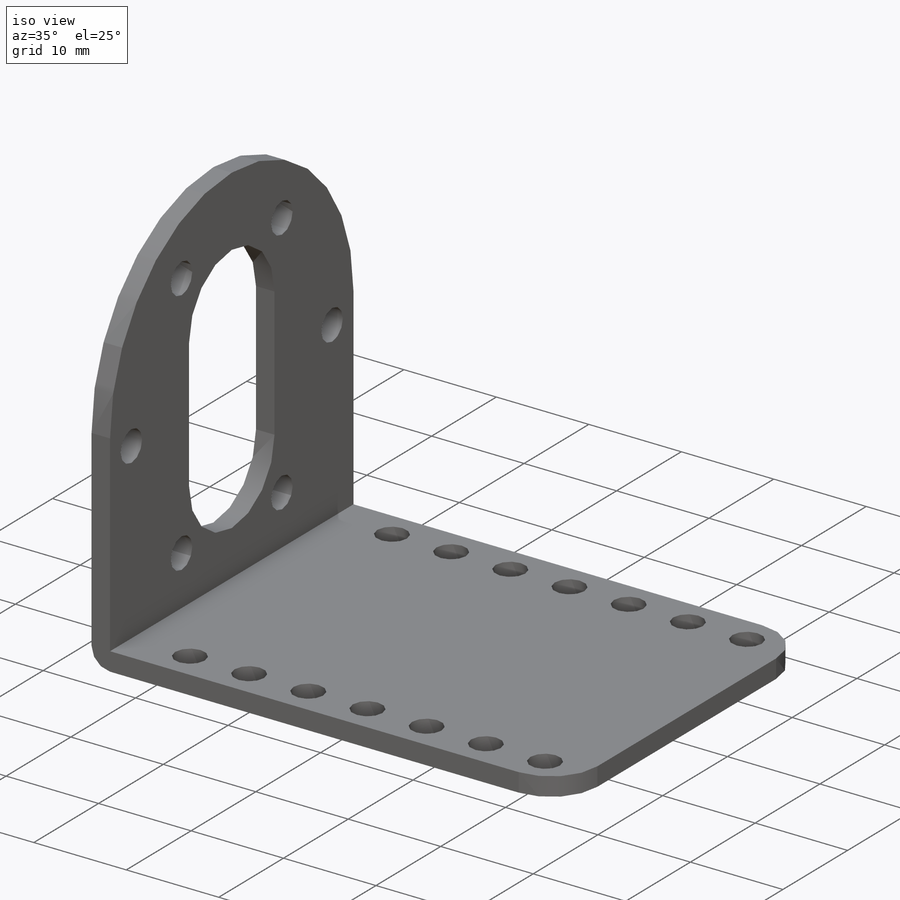
[diagram: iso view]
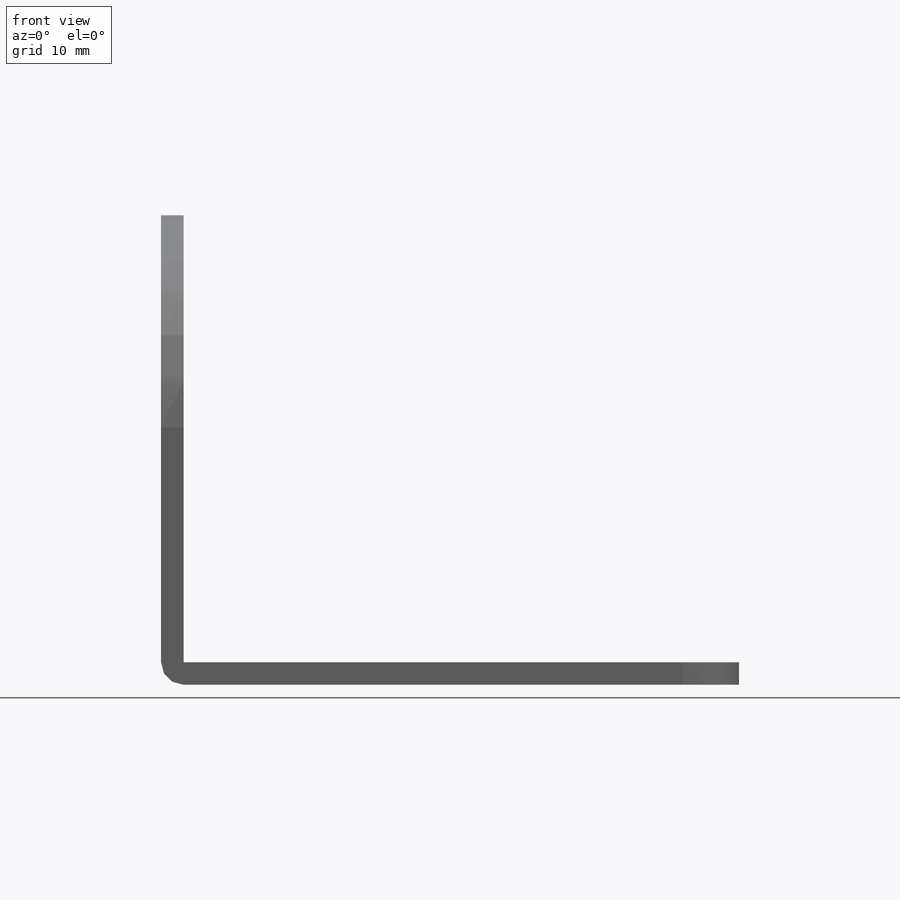
[diagram: front view]
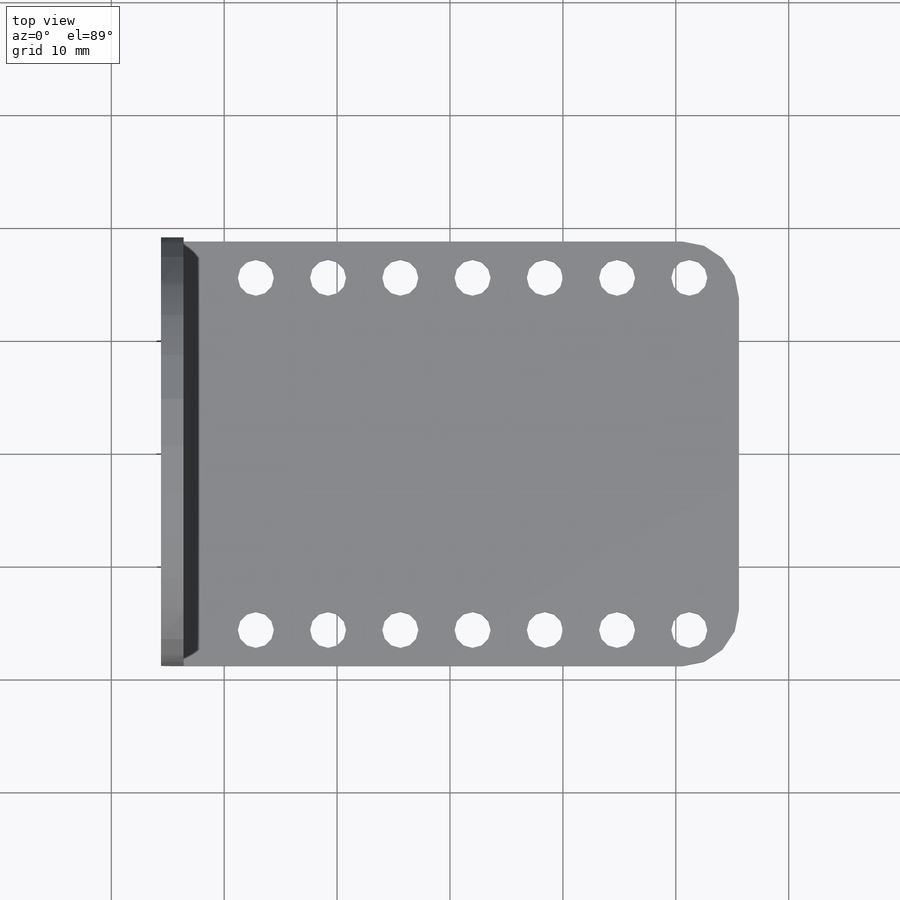
[diagram: top view]
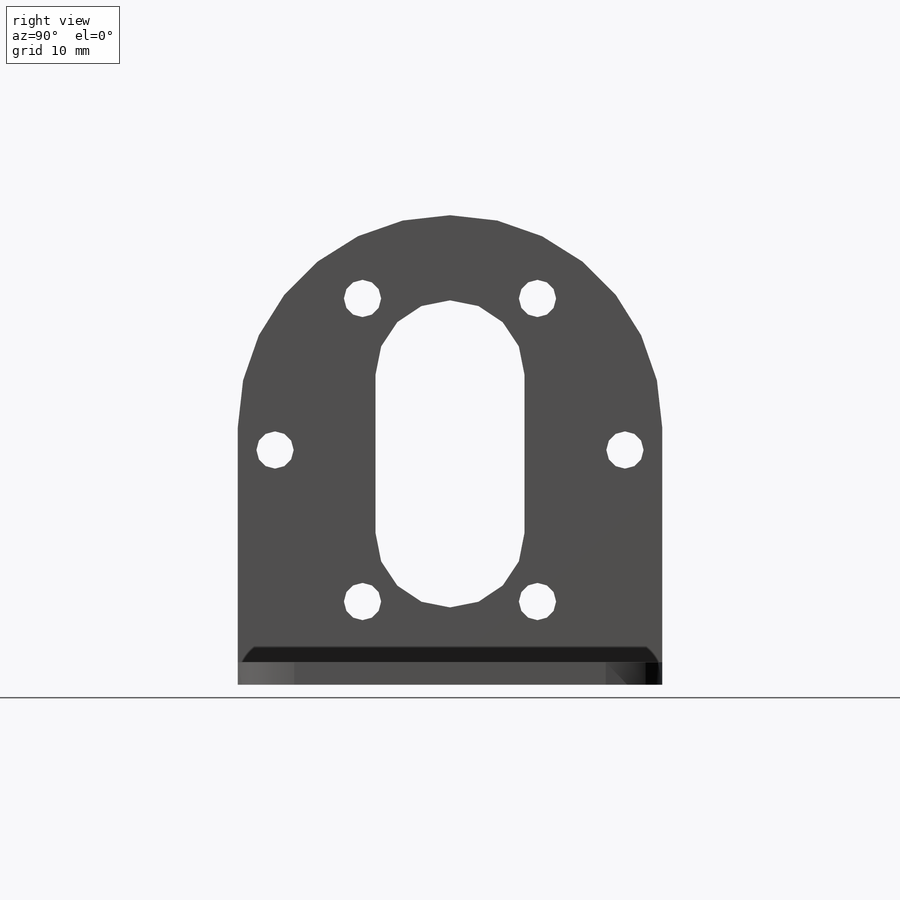
[diagram: right view]
SOLIDWORKS PART (.sldprt)
format: sldprt  version: not decoded by parser v0  size: 267,776 bytes
history: native  units: mm
features: sketch x3, fillet x3, extrude x2, material x1, cut_extrude x1 (+13 scaffold rows collapsed)
feature tree (23):
  scaffold x13  (default folders/planes/origin — collapsed)
  material  "Material <not specified>"
  sketch  "Sketch1"  dims[c1.D3=3.2mm c1.D5=3.2mm c1.D6=3.2mm c1.D7=3.2mm c1.D1=51.2mm c1.D2=37.6mm c2.D5=31.2mm c2.D6=8.4mm c2.D7=4.4mm c2.D4=7.0]
  extrude  "Boss-Extrude1"  Depth=2mm
  fillet  "Fillet2"  Radius=5mm
  sketch  "Sketch2"  dims[D1=2.0mm]
  extrude  "Boss-Extrude2"  Depth=39.6mm
  sketch  "Sketch3"  dims[D1=31.0mm D2=3.3mm D4=20.8mm D5=14.0mm D6=13.2mm D3=6.0]
  cut_extrude  "Cut-Extrude1"  [1 undecoded]
  fillet  "Fillet3"  Radius=18.8mm
  fillet  "Fillet4"  Radius=2mm
decode coverage: 8 of 9 modeling features carry decoded parameters
note: 1 parameter value undecoded
note: suppression state not decoded; provenance and decode notes live in map.json
